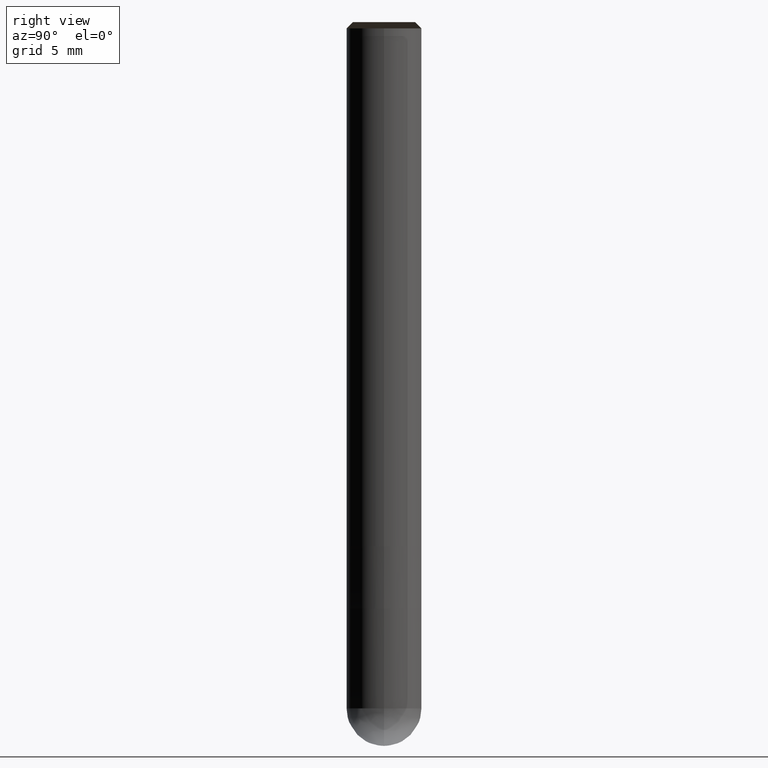
[diagram: clean part render]
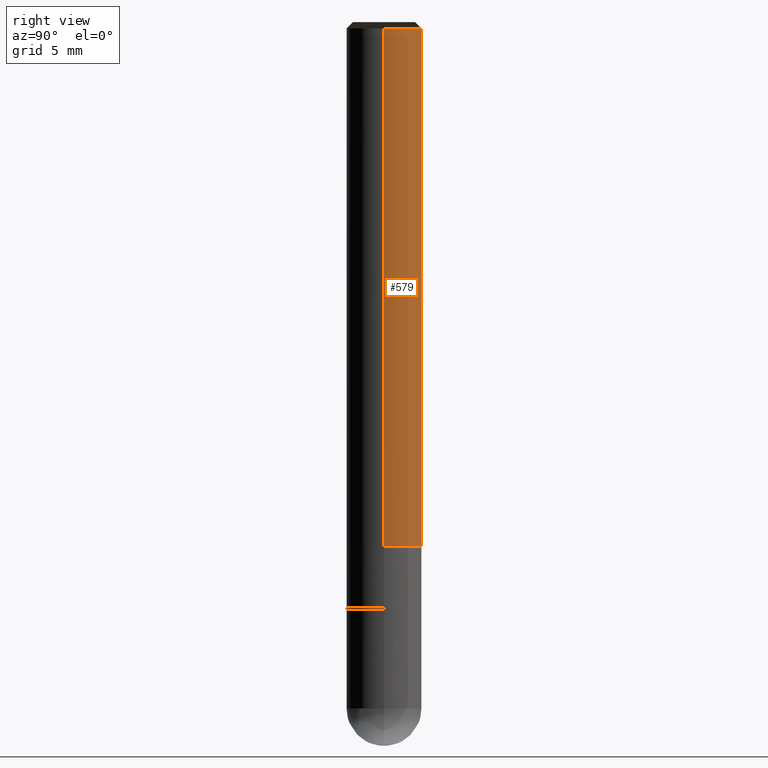
[diagram: same view with one face highlighted and labeled with its STEP entity id]
A machine part, right view. The second image highlights one B-rep face of the part: STEP entity #579.
In plain terms, the highlighted face is a freeform B-spline surface patch.
Its self-contained STEP definition (entity closure, byte-faithful):
#386=CARTESIAN_POINT('',(3.0,0.0,0.0));
#387=CARTESIAN_POINT('',(3.0,3.0,0.0));
#388=CARTESIAN_POINT('',(0.0,3.0,0.0));
#389=CARTESIAN_POINT('',(-3.0,3.0,0.0));
#390=CARTESIAN_POINT('',(-3.0,0.0,0.0));
#391=CARTESIAN_POINT('',(3.0,0.0,41.5));
#392=CARTESIAN_POINT('',(3.0,3.0,41.5));
#393=CARTESIAN_POINT('',(0.0,3.0,41.5));
#394=CARTESIAN_POINT('',(-3.0,3.0,41.5));
#395=CARTESIAN_POINT('',(-3.0,0.0,41.5));
#560=(
BOUNDED_SURFACE()
B_SPLINE_SURFACE(1,2,(
(#386,#387,#388,#389,#390),
(#391,#392,#393,#394,#395)
), .UNSPECIFIED.,.F.,.F.,.F.)
B_SPLINE_SURFACE_WITH_KNOTS((2,2),(3,2,3),(
0.0,1.0),(
0.0,0.5,1.0), .UNSPECIFIED.)
GEOMETRIC_REPRESENTATION_ITEM()
RATIONAL_B_SPLINE_SURFACE(((1.0,0.707106781187,1.0,0.707106781187,1.0),
(1.0,0.707106781187,1.0,0.707106781187,1.0)
))
REPRESENTATION_ITEM('')
SURFACE()
);
#561=(
BOUNDED_CURVE()
B_SPLINE_CURVE(2,(#390,#389,#388,#387,#386),.UNSPECIFIED.,.F.,.F.)
B_SPLINE_CURVE_WITH_KNOTS((3,2,3),
(0.0,0.5,1.0),.UNSPECIFIED.)
CURVE()
GEOMETRIC_REPRESENTATION_ITEM()
RATIONAL_B_SPLINE_CURVE((1.0,0.707106781187,1.0,0.707106781187,1.0))
REPRESENTATION_ITEM('')
);
#562=(
BOUNDED_CURVE()
B_SPLINE_CURVE(1,(#386,#391),.UNSPECIFIED.,.F.,.F.)
B_SPLINE_CURVE_WITH_KNOTS((2,2),
(0.0,1.0),.UNSPECIFIED.)
CURVE()
GEOMETRIC_REPRESENTATION_ITEM()
RATIONAL_B_SPLINE_CURVE((1.0,1.0))
REPRESENTATION_ITEM('')
);
#563=(
BOUNDED_CURVE()
B_SPLINE_CURVE(2,(#391,#392,#393,#394,#395),.UNSPECIFIED.,.F.,.F.)
B_SPLINE_CURVE_WITH_KNOTS((3,2,3),
(0.0,0.5,1.0),.UNSPECIFIED.)
CURVE()
GEOMETRIC_REPRESENTATION_ITEM()
RATIONAL_B_SPLINE_CURVE((1.0,0.707106781187,1.0,0.707106781187,1.0))
REPRESENTATION_ITEM('')
);
#564=(
BOUNDED_CURVE()
B_SPLINE_CURVE(1,(#395,#390),.UNSPECIFIED.,.F.,.F.)
B_SPLINE_CURVE_WITH_KNOTS((2,2),
(0.0,1.0),.UNSPECIFIED.)
CURVE()
GEOMETRIC_REPRESENTATION_ITEM()
RATIONAL_B_SPLINE_CURVE((1.0,1.0))
REPRESENTATION_ITEM('')
);
#565=VERTEX_POINT('',#386);
#566=VERTEX_POINT('',#390);
#567=VERTEX_POINT('',#391);
#568=VERTEX_POINT('',#395);
#569=EDGE_CURVE('',#566,#565,#561,.T.);
#570=EDGE_CURVE('',#565,#567,#562,.T.);
#571=EDGE_CURVE('',#567,#568,#563,.T.);
#572=EDGE_CURVE('',#568,#566,#564,.T.);
#573=ORIENTED_EDGE('',*,*,#569,.T.);
#574=ORIENTED_EDGE('',*,*,#570,.T.);
#575=ORIENTED_EDGE('',*,*,#571,.T.);
#576=ORIENTED_EDGE('',*,*,#572,.T.);
#577=EDGE_LOOP('',(#573,#574,#575,#576));
#578=FACE_OUTER_BOUND('',#577,.T.);
#579=ADVANCED_FACE('',(#578),#560,.T.);